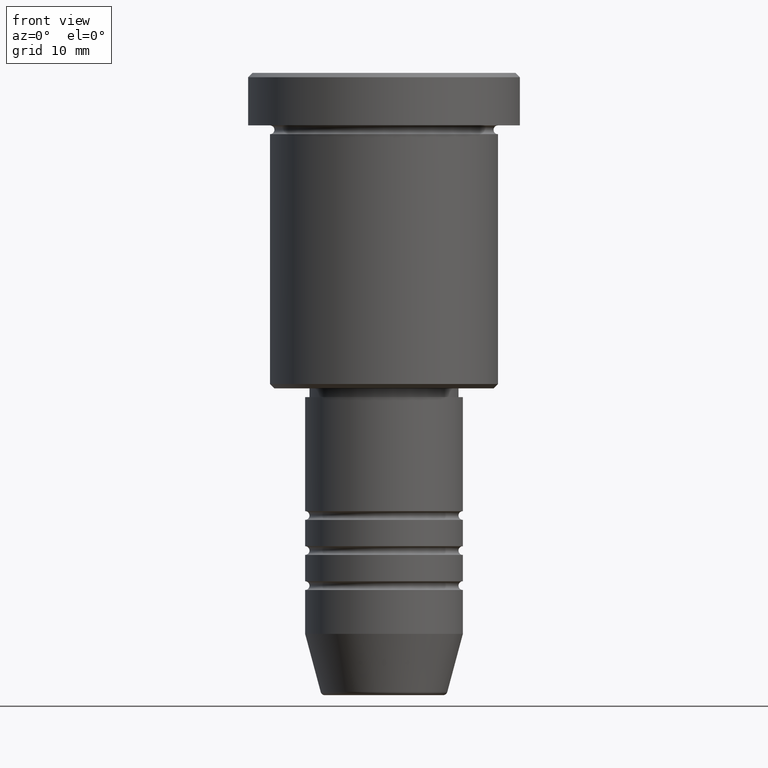
[diagram: clean part render]
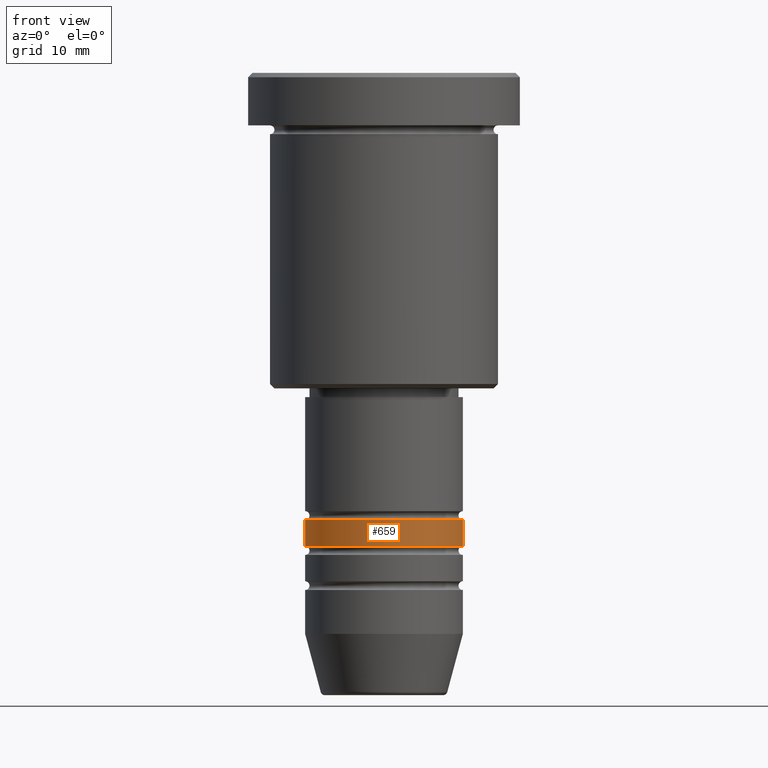
[diagram: same view with one face highlighted and labeled with its STEP entity id]
A machine part, front view. The second image highlights one B-rep face of the part: STEP entity #659.
In plain terms, the highlighted cylindrical surface (partial cylindrical patch) has radius 9 mm, axis along (-0, -0, 1).
Its self-contained STEP definition (entity closure, byte-faithful):
#26 = EDGE_CURVE ( 'NONE', #958, #342, #900, .T. ) ;
#64 = LINE ( 'NONE', #610, #728 ) ;
#89 = CARTESIAN_POINT ( 'NONE',  ( 9.000000000000000000, 0.000000000000000000, -50.99999999999989342 ) ) ;
#118 = VECTOR ( 'NONE', #448, 1000.000000000000000 ) ;
#161 = DIRECTION ( 'NONE',  ( -0.000000000000000000, -0.000000000000000000, 1.000000000000000000 ) ) ;
#162 = DIRECTION ( 'NONE',  ( 1.000000000000000000, 0.000000000000000000, 0.000000000000000000 ) ) ;
#167 = DIRECTION ( 'NONE',  ( 1.000000000000000000, 0.000000000000000000, 0.000000000000000000 ) ) ;
#180 = CARTESIAN_POINT ( 'NONE',  ( 9.000000000000001776, 0.000000000000000000, 0.000000000000000000 ) ) ;
#182 = CARTESIAN_POINT ( 'NONE',  ( -9.000000000000000000, 1.102182119232617714E-15, -50.99999999999989342 ) ) ;
#288 = LINE ( 'NONE', #180, #118 ) ;
#334 = VERTEX_POINT ( 'NONE', #932 ) ;
#342 = VERTEX_POINT ( 'NONE', #89 ) ;
#345 = EDGE_CURVE ( 'NONE', #885, #342, #288, .T. ) ;
#365 = EDGE_CURVE ( 'NONE', #334, #885, #629, .T. ) ;
#448 = DIRECTION ( 'NONE',  ( -0.000000000000000000, -0.000000000000000000, 1.000000000000000000 ) ) ;
#610 = CARTESIAN_POINT ( 'NONE',  ( -9.000000000000001776, 1.102182119232617911E-15, 0.000000000000000000 ) ) ;
#627 = EDGE_CURVE ( 'NONE', #334, #958, #64, .T. ) ;
#629 = CIRCLE ( 'NONE', #1165, 9.000000000000001776 ) ;
#639 = DIRECTION ( 'NONE',  ( 1.000000000000000000, 0.000000000000000000, 0.000000000000000000 ) ) ;
#659 = ADVANCED_FACE ( 'NONE', ( #985 ), #795, .T. ) ;
#674 = EDGE_LOOP ( 'NONE', ( #998, #890, #675, #1121 ) ) ;
#675 = ORIENTED_EDGE ( 'NONE', *, *, #345, .T. ) ;
#709 = DIRECTION ( 'NONE',  ( -0.000000000000000000, -0.000000000000000000, 1.000000000000000000 ) ) ;
#720 = DIRECTION ( 'NONE',  ( -0.000000000000000000, -0.000000000000000000, 1.000000000000000000 ) ) ;
#728 = VECTOR ( 'NONE', #720, 1000.000000000000000 ) ;
#732 = CARTESIAN_POINT ( 'NONE',  ( 0.000000000000000000, 0.000000000000000000, -53.99999999999990763 ) ) ;
#795 = CYLINDRICAL_SURFACE ( 'NONE', #1131, 9.000000000000001776 ) ;
#807 = CARTESIAN_POINT ( 'NONE',  ( 9.000000000000001776, 0.000000000000000000, -53.99999999999990763 ) ) ;
#810 = CARTESIAN_POINT ( 'NONE',  ( 0.000000000000000000, 0.000000000000000000, -50.99999999999989342 ) ) ;
#885 = VERTEX_POINT ( 'NONE', #807 ) ;
#890 = ORIENTED_EDGE ( 'NONE', *, *, #365, .T. ) ;
#900 = CIRCLE ( 'NONE', #1068, 9.000000000000000000 ) ;
#932 = CARTESIAN_POINT ( 'NONE',  ( -9.000000000000001776, 1.102182119232617911E-15, -53.99999999999990763 ) ) ;
#958 = VERTEX_POINT ( 'NONE', #182 ) ;
#985 = FACE_OUTER_BOUND ( 'NONE', #674, .T. ) ;
#998 = ORIENTED_EDGE ( 'NONE', *, *, #627, .F. ) ;
#1068 = AXIS2_PLACEMENT_3D ( 'NONE', #810, #161, #167 ) ;
#1096 = DIRECTION ( 'NONE',  ( -0.000000000000000000, -0.000000000000000000, 1.000000000000000000 ) ) ;
#1121 = ORIENTED_EDGE ( 'NONE', *, *, #26, .F. ) ;
#1131 = AXIS2_PLACEMENT_3D ( 'NONE', #1161, #709, #162 ) ;
#1161 = CARTESIAN_POINT ( 'NONE',  ( 0.000000000000000000, 0.000000000000000000, 0.000000000000000000 ) ) ;
#1165 = AXIS2_PLACEMENT_3D ( 'NONE', #732, #1096, #639 ) ;